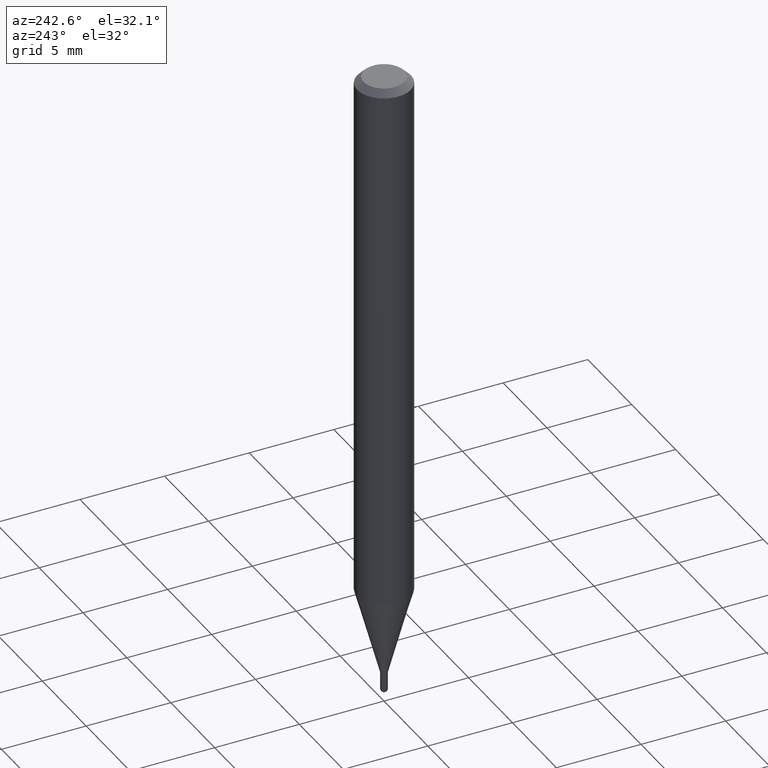
[diagram: clean part render]
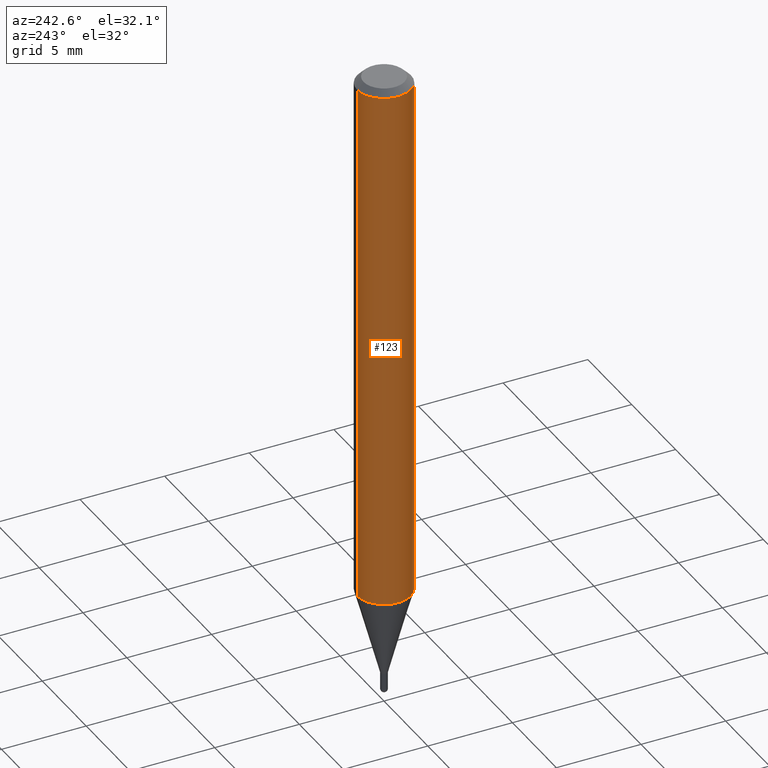
[diagram: same view with one face highlighted and labeled with its STEP entity id]
A machine part, auxiliary view. The second image highlights one B-rep face of the part: STEP entity #123.
In plain terms, the highlighted cylindrical surface (edge-blend (fillet) strip) has radius 1.5875 mm, axis along (-0, 0, 1).
Its self-contained STEP definition (entity closure, byte-faithful):
#17 = VERTEX_POINT ( 'NONE', #329 ) ;
#23 = ORIENTED_EDGE ( 'NONE', *, *, #125, .F. ) ;
#42 = AXIS2_PLACEMENT_3D ( 'NONE', #456, #147, #224 ) ;
#66 = CYLINDRICAL_SURFACE ( 'NONE', #302, 0.06250000000000000000 ) ;
#68 = CARTESIAN_POINT ( 'NONE',  ( -4.364351673553912750E-16, -0.06250000000000005551, -0.01499999999999979128 ) ) ;
#84 = CARTESIAN_POINT ( 'NONE',  ( -4.364351673553916201E-16, -0.06250000000000000000, 2.182169697023116300E-16 ) ) ;
#92 = VERTEX_POINT ( 'NONE', #219 ) ;
#105 = ORIENTED_EDGE ( 'NONE', *, *, #380, .F. ) ;
#120 = DIRECTION ( 'NONE',  ( -2.445475665972653813E-29, 3.491471515236985685E-15, 1.000000000000000000 ) ) ;
#123 = ADVANCED_FACE ( 'NONE', ( #230 ), #66, .T. ) ;
#125 = EDGE_CURVE ( 'NONE', #134, #235, #429, .T. ) ;
#134 = VERTEX_POINT ( 'NONE', #381 ) ;
#147 = DIRECTION ( 'NONE',  ( -2.445475665972653813E-29, 3.491471515236986079E-15, 1.000000000000000000 ) ) ;
#151 = CARTESIAN_POINT ( 'NONE',  ( 0.000000000000000000, 0.000000000000000000, 0.000000000000000000 ) ) ;
#153 = EDGE_CURVE ( 'NONE', #17, #235, #233, .T. ) ;
#160 = CARTESIAN_POINT ( 'NONE',  ( 3.053428817834770725E-29, -4.359462614825733098E-15, -1.248603230987502810 ) ) ;
#219 = CARTESIAN_POINT ( 'NONE',  ( 4.440892098500929873E-16, 0.06249999999999562850, -1.248603230987503032 ) ) ;
#224 = DIRECTION ( 'NONE',  ( -6.982962677686265922E-15, -1.000000000000000000, 3.483106191921935554E-15 ) ) ;
#230 = FACE_OUTER_BOUND ( 'NONE', #256, .T. ) ;
#233 = LINE ( 'NONE', #84, #446 ) ;
#235 = VERTEX_POINT ( 'NONE', #68 ) ;
#255 = CIRCLE ( 'NONE', #460, 0.06250000000000000000 ) ;
#256 = EDGE_LOOP ( 'NONE', ( #105, #276, #485, #23 ) ) ;
#276 = ORIENTED_EDGE ( 'NONE', *, *, #445, .T. ) ;
#302 = AXIS2_PLACEMENT_3D ( 'NONE', #151, #464, #453 ) ;
#309 = DIRECTION ( 'NONE',  ( -2.445475665972653813E-29, 3.491471515236986079E-15, 1.000000000000000000 ) ) ;
#316 = DIRECTION ( 'NONE',  ( -6.982962677686265922E-15, -1.000000000000000000, 4.370956789862821150E-15 ) ) ;
#326 = VECTOR ( 'NONE', #120, 39.37007874015748143 ) ;
#329 = CARTESIAN_POINT ( 'NONE',  ( -4.364351673553611504E-16, -0.06250000000000437150, -1.248603230987502588 ) ) ;
#346 = DIRECTION ( 'NONE',  ( -2.445475665972653813E-29, 3.491471515236985685E-15, 1.000000000000000000 ) ) ;
#380 = EDGE_CURVE ( 'NONE', #92, #134, #394, .T. ) ;
#381 = CARTESIAN_POINT ( 'NONE',  ( 4.440892098500932831E-16, 0.06249999999999995143, -0.01500000000000022669 ) ) ;
#394 = LINE ( 'NONE', #466, #326 ) ;
#429 = CIRCLE ( 'NONE', #42, 0.06250000000000000000 ) ;
#445 = EDGE_CURVE ( 'NONE', #92, #17, #255, .T. ) ;
#446 = VECTOR ( 'NONE', #346, 39.37007874015748143 ) ;
#453 = DIRECTION ( 'NONE',  ( -6.982962677686265922E-15, -1.000000000000000000, 3.491471515236986079E-15 ) ) ;
#456 = CARTESIAN_POINT ( 'NONE',  ( 3.668213498958982944E-31, -5.237207272855482496E-17, -0.01500000000000000812 ) ) ;
#460 = AXIS2_PLACEMENT_3D ( 'NONE', #160, #309, #316 ) ;
#464 = DIRECTION ( 'NONE',  ( -2.445475665972653813E-29, 3.491471515236986079E-15, 1.000000000000000000 ) ) ;
#466 = CARTESIAN_POINT ( 'NONE',  ( 4.440892098500625669E-16, 0.06250000000000000000, -2.182169697023116300E-16 ) ) ;
#485 = ORIENTED_EDGE ( 'NONE', *, *, #153, .T. ) ;